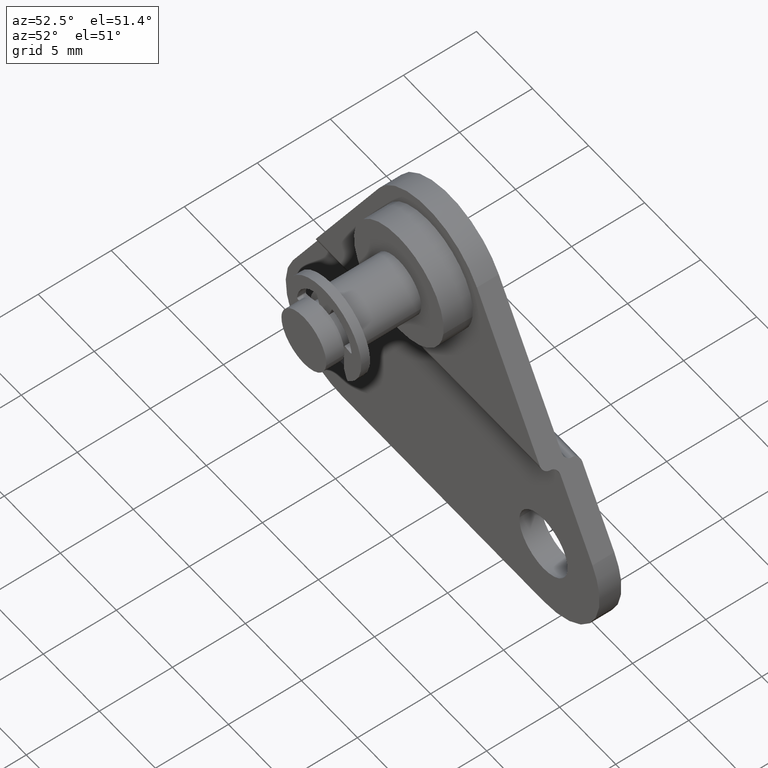
[diagram: clean part render]
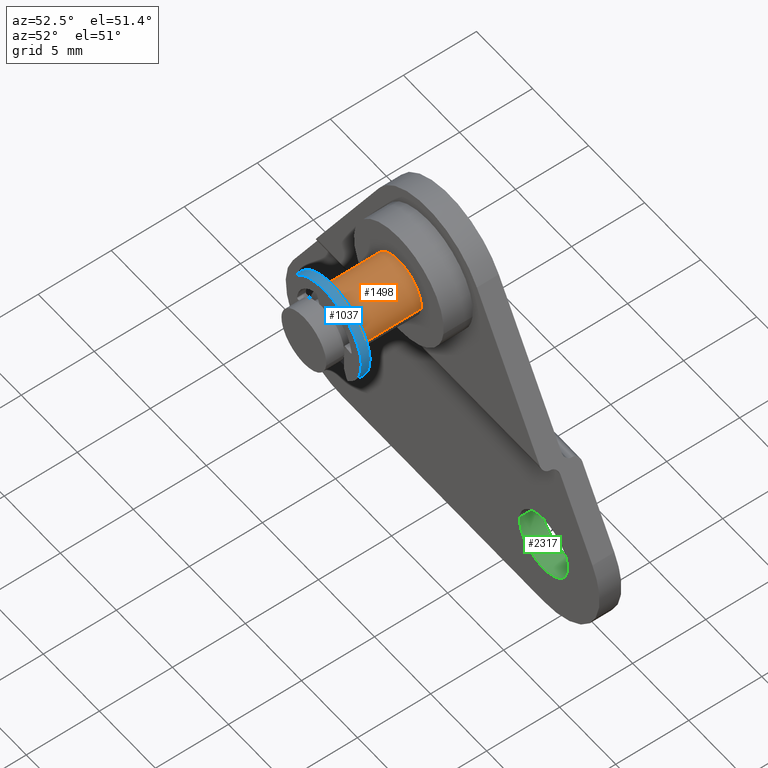
[diagram: same view with three faces highlighted in distinct colors, each labeled with its STEP entity id]
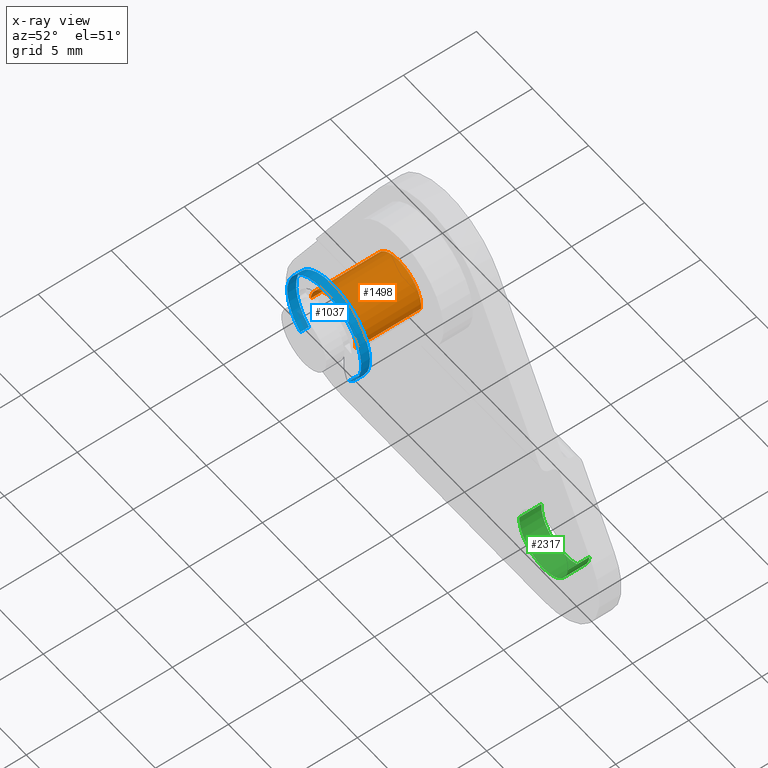
[diagram: x-ray of the same camera — body ghosted, the three highlighted faces saturated]
A machine part, auxiliary view with three faces highlighted in distinct colors.
The next image is the same camera in x-ray (body ghosted, the three faces saturated) — at least one of them is partly hidden behind the body in this view.
Their STEP definitions:

[orange] entity #1498 — the highlighted face is a freeform B-spline surface patch.
#1396=CARTESIAN_POINT('',(1.986019052727332,-4.387500000000000,15.763931530686484));
#1397=CARTESIAN_POINT('',(1.992775230897211,-4.387499999999998,15.820770542724050));
#1398=CARTESIAN_POINT('',(1.996269596843733,-4.387499999999999,15.877902920930291));
#1399=CARTESIAN_POINT('',(2.118366675913447,-4.387499999999999,17.874172517774024));
#1400=CARTESIAN_POINT('',(0.122097079069714,-4.387499999999999,17.996269596843732));
#1401=CARTESIAN_POINT('',(-1.874172517774020,-4.387499999999999,18.118366675913453));
#1402=CARTESIAN_POINT('',(-1.996269596843733,-4.387499999999999,16.122097079069711));
#1403=CARTESIAN_POINT('',(1.986019052727332,-9.115312500000002,15.763931530686484));
#1404=CARTESIAN_POINT('',(1.992775230897211,-9.115312500000002,15.820770542724050));
#1405=CARTESIAN_POINT('',(1.996269596843733,-9.115312500000002,15.877902920930291));
#1406=CARTESIAN_POINT('',(2.118366675913447,-9.115312500000002,17.874172517774024));
#1407=CARTESIAN_POINT('',(0.122097079069714,-9.115312500000002,17.996269596843732));
#1408=CARTESIAN_POINT('',(-1.874172517774020,-9.115312500000002,18.118366675913453));
#1409=CARTESIAN_POINT('',(-1.996269596843733,-9.115312500000002,16.122097079069711));
#1417=(BOUNDED_SURFACE()B_SPLINE_SURFACE(2,1,((#1396,#1403),(#1397,#1404),(#1398,#1405),(#1399,#1406),(#1400,#1407),(#1401,#1408),(#1402,#1409)),.UNSPECIFIED.,.F.,.F.,.U.)B_SPLINE_SURFACE_WITH_KNOTS((3,2,2,3),(2,2),(0.0,0.132548339959391,3.446256838944152,6.759965337928914),(0.0,4.727812500000003),.UNSPECIFIED.)GEOMETRIC_REPRESENTATION_ITEM()RATIONAL_B_SPLINE_SURFACE(((0.977505800795127,0.977505800795127),(0.988284271247462,0.988284271247462),(1.0,1.0),(0.707106781186548,0.707106781186548),(1.0,1.0),(0.707106781186548,0.707106781186548),(1.0,1.0)))REPRESENTATION_ITEM('')SURFACE());
#1418=CARTESIAN_POINT('',(1.986019052724167,-4.500000000000000,15.763931530659850));
#1419=VERTEX_POINT('',#1418);
#1420=CARTESIAN_POINT('',(0.0,-4.500000000000000,18.0));
#1421=VERTEX_POINT('',#1420);
#1422=CARTESIAN_POINT('',(1.986019052724167,-4.500000000000000,15.763931530659852));
#1423=CARTESIAN_POINT('',(2.000000000000000,-4.500000000000000,15.881551760669263));
#1424=CARTESIAN_POINT('',(2.0,-4.500000000000000,16.0));
#1425=CARTESIAN_POINT('',(2.000000000000000,-4.500000000000000,18.000000000000007));
#1426=CARTESIAN_POINT('',(0.0,-4.500000000000000,18.0));
#1434=(BOUNDED_CURVE()B_SPLINE_CURVE(2,(#1422,#1423,#1424,#1425,#1426),.UNSPECIFIED.,.F.,.U.)B_SPLINE_CURVE_WITH_KNOTS((3,2,3),(0.229562473511112,0.250000000000000,0.500000000000000),.UNSPECIFIED.)CURVE()GEOMETRIC_REPRESENTATION_ITEM()RATIONAL_B_SPLINE_CURVE((0.956026754179002,0.976055948328337,1.0,0.707106781186548,1.0))REPRESENTATION_ITEM(''));
#1435=EDGE_CURVE('',#1419,#1421,#1434,.T.);
#1436=ORIENTED_EDGE('',*,*,#1435,.T.);
#1437=CARTESIAN_POINT('',(-1.996269751361373,-4.500000000000024,16.122094552676181));
#1438=VERTEX_POINT('',#1437);
#1439=CARTESIAN_POINT('',(0.0,-4.500000000000000,18.0));
#1440=CARTESIAN_POINT('',(-1.881414519296867,-4.499999999999999,17.999999999999996));
#1441=CARTESIAN_POINT('',(-1.996269751361373,-4.500000000000024,16.122094552676181));
#1449=(BOUNDED_CURVE()B_SPLINE_CURVE(2,(#1439,#1440,#1441),.UNSPECIFIED.,.F.,.U.)B_SPLINE_CURVE_WITH_KNOTS((3,3),(0.500000000000000,0.739333180609851),.UNSPECIFIED.)CURVE()GEOMETRIC_REPRESENTATION_ITEM()RATIONAL_B_SPLINE_CURVE((1.0,0.719603737449278,0.976072509677589))REPRESENTATION_ITEM(''));
#1450=EDGE_CURVE('',#1421,#1438,#1449,.T.);
#1451=ORIENTED_EDGE('',*,*,#1450,.T.);
#1452=CARTESIAN_POINT('',(-1.996269749504410,-9.0,16.122094583038500));
#1453=VERTEX_POINT('',#1452);
#1454=CARTESIAN_POINT('',(-1.996269751361373,-4.500000000000024,16.122094552676181));
#1455=CARTESIAN_POINT('',(-1.996269749504410,-9.0,16.122094583038500));
#1456=QUASI_UNIFORM_CURVE('',1,(#1454,#1455),.UNSPECIFIED.,.F.,.U.);
#1457=EDGE_CURVE('',#1438,#1453,#1456,.T.);
#1458=ORIENTED_EDGE('',*,*,#1457,.T.);
#1459=CARTESIAN_POINT('',(0.0,-9.0,18.0));
#1460=VERTEX_POINT('',#1459);
#1461=CARTESIAN_POINT('',(0.0,-9.0,18.0));
#1462=CARTESIAN_POINT('',(-1.881414490627970,-9.000000000000002,18.000000000000007));
#1463=CARTESIAN_POINT('',(-1.996269749504410,-9.0,16.122094583038503));
#1471=(BOUNDED_CURVE()B_SPLINE_CURVE(2,(#1461,#1462,#1463),.UNSPECIFIED.,.F.,.U.)B_SPLINE_CURVE_WITH_KNOTS((3,3),(0.500000000000000,0.739333177985494),.UNSPECIFIED.)CURVE()GEOMETRIC_REPRESENTATION_ITEM()RATIONAL_B_SPLINE_CURVE((1.0,0.719603740523903,0.976072504053083))REPRESENTATION_ITEM(''));
#1472=EDGE_CURVE('',#1460,#1453,#1471,.T.);
#1473=ORIENTED_EDGE('',*,*,#1472,.F.);
#1474=CARTESIAN_POINT('',(1.986019052724167,-9.0,15.763931530659850));
#1475=VERTEX_POINT('',#1474);
#1476=CARTESIAN_POINT('',(1.986019052724168,-9.0,15.763931530659848));
#1477=CARTESIAN_POINT('',(2.000000000000000,-9.0,15.881551760669270));
#1478=CARTESIAN_POINT('',(2.0,-9.0,16.0));
#1479=CARTESIAN_POINT('',(2.000000000000000,-9.000000000000002,18.000000000000007));
#1480=CARTESIAN_POINT('',(0.0,-9.0,18.0));
#1488=(BOUNDED_CURVE()B_SPLINE_CURVE(2,(#1476,#1477,#1478,#1479,#1480),.UNSPECIFIED.,.F.,.U.)B_SPLINE_CURVE_WITH_KNOTS((3,2,3),(0.229562473511112,0.250000000000000,0.500000000000000),.UNSPECIFIED.)CURVE()GEOMETRIC_REPRESENTATION_ITEM()RATIONAL_B_SPLINE_CURVE((0.956026754179002,0.976055948328337,1.0,0.707106781186548,1.0))REPRESENTATION_ITEM(''));
#1489=EDGE_CURVE('',#1475,#1460,#1488,.T.);
#1490=ORIENTED_EDGE('',*,*,#1489,.F.);
#1491=CARTESIAN_POINT('',(1.986019052724167,-4.500000000000000,15.763931530659850));
#1492=CARTESIAN_POINT('',(1.986019052724167,-9.0,15.763931530659850));
#1493=QUASI_UNIFORM_CURVE('',1,(#1491,#1492),.UNSPECIFIED.,.F.,.U.);
#1494=EDGE_CURVE('',#1419,#1475,#1493,.T.);
#1495=ORIENTED_EDGE('',*,*,#1494,.F.);
#1496=EDGE_LOOP('',(#1436,#1451,#1458,#1473,#1490,#1495));
#1497=FACE_OUTER_BOUND('',#1496,.T.);
#1498=ADVANCED_FACE('',(#1497),#1417,.T.);

[blue] entity #1037 — the highlighted face is a freeform B-spline surface patch.
#628=CARTESIAN_POINT('',(-2.150005846573465,-9.0,13.496507533524420));
#629=VERTEX_POINT('',#628);
#645=CARTESIAN_POINT('',(2.150003786631555,-9.0,13.496504953358860));
#646=VERTEX_POINT('',#645);
#647=CARTESIAN_POINT('',(2.150003786631555,-9.0,13.496504953358860));
#648=CARTESIAN_POINT('',(3.892310612982329,-9.0,14.992800426240894));
#649=CARTESIAN_POINT('',(3.094473714975639,-9.0,17.146399623745960));
#650=CARTESIAN_POINT('',(2.296636816968949,-9.0,19.299998821251020));
#651=CARTESIAN_POINT('',(0.000001621881555,-9.0,19.299999949999599));
#652=CARTESIAN_POINT('',(-2.296633573205840,-9.0,19.300001078748178));
#653=CARTESIAN_POINT('',(-3.094472588110852,-9.0,17.146402665484750));
#654=CARTESIAN_POINT('',(-3.892311603015864,-9.0,14.992804252221307));
#655=CARTESIAN_POINT('',(-2.150005846573460,-9.0,13.496507533524429));
#663=(BOUNDED_CURVE()B_SPLINE_CURVE(2,(#647,#648,#649,#650,#651,#652,#653,#654,#655),.UNSPECIFIED.,.F.,.U.)B_SPLINE_CURVE_WITH_KNOTS((3,2,2,2,3),(0.0,0.250000000000000,0.500000000000000,0.750000000000000,1.0),.UNSPECIFIED.)CURVE()GEOMETRIC_REPRESENTATION_ITEM()RATIONAL_B_SPLINE_CURVE((1.0,0.820790561443864,1.0,0.820790561443864,1.0,0.820790561443864,1.0,0.820790561443864,1.0))REPRESENTATION_ITEM(''));
#664=EDGE_CURVE('',#646,#629,#663,.T.);
#778=CARTESIAN_POINT('',(2.150003786631555,-9.600000000000000,13.496504953358860));
#779=VERTEX_POINT('',#778);
#795=CARTESIAN_POINT('',(-2.150005846573465,-9.600000000000000,13.496507533524420));
#796=VERTEX_POINT('',#795);
#797=CARTESIAN_POINT('',(2.150003786631555,-9.600000000000000,13.496504953358860));
#798=CARTESIAN_POINT('',(3.892310612982329,-9.600000000000000,14.992800426240894));
#799=CARTESIAN_POINT('',(3.094473714975639,-9.600000000000000,17.146399623745960));
#800=CARTESIAN_POINT('',(2.296636816968949,-9.600000000000000,19.299998821251020));
#801=CARTESIAN_POINT('',(0.000001621881555,-9.600000000000000,19.299999949999599));
#802=CARTESIAN_POINT('',(-2.296633573205840,-9.600000000000000,19.300001078748178));
#803=CARTESIAN_POINT('',(-3.094472588110852,-9.600000000000000,17.146402665484750));
#804=CARTESIAN_POINT('',(-3.892311603015864,-9.600000000000000,14.992804252221307));
#805=CARTESIAN_POINT('',(-2.150005846573460,-9.600000000000000,13.496507533524429));
#813=(BOUNDED_CURVE()B_SPLINE_CURVE(2,(#797,#798,#799,#800,#801,#802,#803,#804,#805),.UNSPECIFIED.,.F.,.U.)B_SPLINE_CURVE_WITH_KNOTS((3,2,2,2,3),(0.0,0.250000000000000,0.500000000000000,0.750000000000000,1.0),.UNSPECIFIED.)CURVE()GEOMETRIC_REPRESENTATION_ITEM()RATIONAL_B_SPLINE_CURVE((1.0,0.820790561443864,1.0,0.820790561443864,1.0,0.820790561443864,1.0,0.820790561443864,1.0))REPRESENTATION_ITEM(''));
#814=EDGE_CURVE('',#779,#796,#813,.T.);
#997=CARTESIAN_POINT('',(-2.150005846573465,-9.600000000000000,13.496507533524420));
#998=CARTESIAN_POINT('',(-2.150005846573465,-9.0,13.496507533524420));
#999=QUASI_UNIFORM_CURVE('',1,(#997,#998),.UNSPECIFIED.,.F.,.U.);
#1000=EDGE_CURVE('',#796,#629,#999,.T.);
#1005=CARTESIAN_POINT('',(2.083732785074836,-9.615000000000002,13.441082777735030));
#1006=CARTESIAN_POINT('',(2.083732785074836,-8.984624999999998,13.441082777735030));
#1007=CARTESIAN_POINT('',(4.843889195230157,-9.615000000000002,15.688685143975054));
#1008=CARTESIAN_POINT('',(4.843889195230157,-8.984624999999998,15.688685143975054));
#1009=CARTESIAN_POINT('',(2.394157698992865,-9.615000000000002,18.271124959651750));
#1010=CARTESIAN_POINT('',(2.394157698992865,-8.984624999999998,18.271124959651750));
#1011=CARTESIAN_POINT('',(-0.055573797244425,-9.615000000000002,20.853564775328451));
#1012=CARTESIAN_POINT('',(-0.055573797244425,-8.984624999999998,20.853564775328451));
#1013=CARTESIAN_POINT('',(-2.445532403866247,-9.615000000000002,18.215710028780880));
#1014=CARTESIAN_POINT('',(-2.445532403866247,-8.984624999999998,18.215710028780880));
#1015=CARTESIAN_POINT('',(-4.835491010488069,-9.615000000000002,15.577855282233303));
#1016=CARTESIAN_POINT('',(-4.835491010488069,-8.984624999999998,15.577855282233303));
#1017=CARTESIAN_POINT('',(-2.024594452664912,-9.615000000000002,13.394042024084341));
#1018=CARTESIAN_POINT('',(-2.024594452664912,-8.984624999999998,13.394042024084341));
#1026=(BOUNDED_SURFACE()B_SPLINE_SURFACE(1,2,((#1005,#1007,#1009,#1011,#1013,#1015,#1017),(#1006,#1008,#1010,#1012,#1014,#1016,#1018)),.UNSPECIFIED.,.F.,.F.,.U.)B_SPLINE_SURFACE_WITH_KNOTS((2,2),(3,2,2,3),(0.0,1.0),(0.0,5.762366072069613,11.524732144139231,17.287098216208840),.UNSPECIFIED.)GEOMETRIC_REPRESENTATION_ITEM()RATIONAL_B_SPLINE_SURFACE(((1.0,0.679868055986157,1.0,0.679868055986157,1.0,0.679868055986157,1.0),(1.0,0.679868055986157,1.0,0.679868055986157,1.0,0.679868055986157,1.0)))REPRESENTATION_ITEM('')SURFACE());
#1027=ORIENTED_EDGE('',*,*,#664,.T.);
#1028=ORIENTED_EDGE('',*,*,#1000,.F.);
#1029=ORIENTED_EDGE('',*,*,#814,.F.);
#1030=CARTESIAN_POINT('',(2.150003786631555,-9.600000000000000,13.496504953358860));
#1031=CARTESIAN_POINT('',(2.150003786631555,-9.0,13.496504953358860));
#1032=QUASI_UNIFORM_CURVE('',1,(#1030,#1031),.UNSPECIFIED.,.F.,.U.);
#1033=EDGE_CURVE('',#779,#646,#1032,.T.);
#1034=ORIENTED_EDGE('',*,*,#1033,.T.);
#1035=EDGE_LOOP('',(#1027,#1028,#1029,#1034));
#1036=FACE_OUTER_BOUND('',#1035,.T.);
#1037=ADVANCED_FACE('',(#1036),#1026,.T.);

[green] entity #2317 — the highlighted face is a freeform B-spline surface patch.
#2156=CARTESIAN_POINT('',(6.856623632786118,4.510281E-017,0.168687063712577));
#2157=VERTEX_POINT('',#2156);
#2171=CARTESIAN_POINT('',(11.143368367213879,4.510281E-017,-0.168687063712577));
#2172=VERTEX_POINT('',#2171);
#2188=CARTESIAN_POINT('',(11.143368367213879,-1.499999999999946,-0.168687063712577));
#2189=VERTEX_POINT('',#2188);
#2190=CARTESIAN_POINT('',(11.143368367213879,-1.499999999999946,-0.168687063712577));
#2191=CARTESIAN_POINT('',(11.143368367213879,4.510281E-017,-0.168687063712577));
#2192=QUASI_UNIFORM_CURVE('',1,(#2190,#2191),.UNSPECIFIED.,.F.,.U.);
#2193=EDGE_CURVE('',#2189,#2172,#2192,.T.);
#2212=CARTESIAN_POINT('',(6.856623632786118,-1.499999999999946,0.168687063712577));
#2213=VERTEX_POINT('',#2212);
#2227=CARTESIAN_POINT('',(6.856623632786118,-1.499999999999946,0.168687063712577));
#2228=CARTESIAN_POINT('',(6.856623632786118,4.510281E-017,0.168687063712577));
#2229=QUASI_UNIFORM_CURVE('',1,(#2227,#2228),.UNSPECIFIED.,.F.,.U.);
#2230=EDGE_CURVE('',#2213,#2157,#2229,.T.);
#2235=CARTESIAN_POINT('',(11.143368367217960,-1.537499999999945,-0.168687063660777));
#2236=CARTESIAN_POINT('',(10.974681303557178,-1.537499999999945,-2.312059430878735));
#2237=CARTESIAN_POINT('',(8.831308936339221,-1.537499999999945,-2.143372367217958));
#2238=CARTESIAN_POINT('',(6.687936569121264,-1.537499999999945,-1.974685303557180));
#2239=CARTESIAN_POINT('',(6.856623632782042,-1.537499999999945,0.168687063660777));
#2240=CARTESIAN_POINT('',(11.143368367217960,0.038437499999999,-0.168687063660777));
#2241=CARTESIAN_POINT('',(10.974681303557178,0.038437499999999,-2.312059430878735));
#2242=CARTESIAN_POINT('',(8.831308936339221,0.038437499999999,-2.143372367217958));
#2243=CARTESIAN_POINT('',(6.687936569121264,0.038437499999999,-1.974685303557180));
#2244=CARTESIAN_POINT('',(6.856623632782042,0.038437499999999,0.168687063660777));
#2252=(BOUNDED_SURFACE()B_SPLINE_SURFACE(2,1,((#2235,#2240),(#2236,#2241),(#2237,#2242),(#2238,#2243),(#2239,#2244)),.UNSPECIFIED.,.F.,.F.,.U.)B_SPLINE_SURFACE_WITH_KNOTS((3,2,3),(2,2),(0.0,3.562236802094043,7.124473604188085),(0.0,1.0),.UNSPECIFIED.)GEOMETRIC_REPRESENTATION_ITEM()RATIONAL_B_SPLINE_SURFACE(((1.0,1.0),(0.707106781186548,0.707106781186548),(1.0,1.0),(0.707106781186548,0.707106781186548),(1.0,1.0)))REPRESENTATION_ITEM('')SURFACE());
#2253=CARTESIAN_POINT('',(8.999995999999999,0.0,-2.150000100000000));
#2254=VERTEX_POINT('',#2253);
#2255=CARTESIAN_POINT('',(6.856623632786118,4.510281E-017,0.168687063712577));
#2256=CARTESIAN_POINT('',(6.849995899999999,0.0,0.084473734047541));
#2257=CARTESIAN_POINT('',(6.849995899999999,0.0,0.0));
#2258=CARTESIAN_POINT('',(6.849995899999998,0.0,-2.150000100000001));
#2259=CARTESIAN_POINT('',(8.999995999999999,0.0,-2.150000100000000));
#2267=(BOUNDED_CURVE()B_SPLINE_CURVE(2,(#2255,#2256,#2257,#2258,#2259),.UNSPECIFIED.,.F.,.U.)B_SPLINE_CURVE_WITH_KNOTS((3,2,3),(0.236331300624481,0.250000000000000,0.500000000000000),.UNSPECIFIED.)CURVE()GEOMETRIC_REPRESENTATION_ITEM()RATIONAL_B_SPLINE_CURVE((0.969723356154524,0.983986122571643,1.0,0.707106781186548,1.0))REPRESENTATION_ITEM(''));
#2268=EDGE_CURVE('',#2157,#2254,#2267,.T.);
#2269=ORIENTED_EDGE('',*,*,#2268,.F.);
#2270=ORIENTED_EDGE('',*,*,#2230,.F.);
#2271=CARTESIAN_POINT('',(8.999995999999999,-1.499999999999946,-2.150000100000000));
#2272=VERTEX_POINT('',#2271);
#2273=CARTESIAN_POINT('',(6.856623632786118,-1.499999999999946,0.168687063712577));
#2274=CARTESIAN_POINT('',(6.849995899999999,-1.499999999999946,0.084473734047541));
#2275=CARTESIAN_POINT('',(6.849995899999999,-1.499999999999946,0.0));
#2276=CARTESIAN_POINT('',(6.849995899999998,-1.499999999999946,-2.150000100000001));
#2277=CARTESIAN_POINT('',(8.999995999999999,-1.499999999999946,-2.150000100000000));
#2285=(BOUNDED_CURVE()B_SPLINE_CURVE(2,(#2273,#2274,#2275,#2276,#2277),.UNSPECIFIED.,.F.,.U.)B_SPLINE_CURVE_WITH_KNOTS((3,2,3),(0.236331300624481,0.250000000000000,0.500000000000000),.UNSPECIFIED.)CURVE()GEOMETRIC_REPRESENTATION_ITEM()RATIONAL_B_SPLINE_CURVE((0.969723356154524,0.983986122571643,1.0,0.707106781186548,1.0))REPRESENTATION_ITEM(''));
#2286=EDGE_CURVE('',#2213,#2272,#2285,.T.);
#2287=ORIENTED_EDGE('',*,*,#2286,.T.);
#2288=CARTESIAN_POINT('',(8.999995999999999,-1.499999999999946,-2.150000100000000));
#2289=CARTESIAN_POINT('',(10.987435649407841,-1.499999999999947,-2.150000100000001));
#2290=CARTESIAN_POINT('',(11.143368367213881,-1.499999999999947,-0.168687063712577));
#2298=(BOUNDED_CURVE()B_SPLINE_CURVE(2,(#2288,#2289,#2290),.UNSPECIFIED.,.F.,.U.)B_SPLINE_CURVE_WITH_KNOTS((3,3),(0.500000000000000,0.736331300624482),.UNSPECIFIED.)CURVE()GEOMETRIC_REPRESENTATION_ITEM()RATIONAL_B_SPLINE_CURVE((1.0,0.723120658614904,0.969723356154525))REPRESENTATION_ITEM(''));
#2299=EDGE_CURVE('',#2272,#2189,#2298,.T.);
#2300=ORIENTED_EDGE('',*,*,#2299,.T.);
#2301=ORIENTED_EDGE('',*,*,#2193,.T.);
#2302=CARTESIAN_POINT('',(8.999995999999999,0.0,-2.150000100000000));
#2303=CARTESIAN_POINT('',(10.987435649407841,0.0,-2.150000100000001));
#2304=CARTESIAN_POINT('',(11.143368367213881,4.510281E-017,-0.168687063712577));
#2312=(BOUNDED_CURVE()B_SPLINE_CURVE(2,(#2302,#2303,#2304),.UNSPECIFIED.,.F.,.U.)B_SPLINE_CURVE_WITH_KNOTS((3,3),(0.500000000000000,0.736331300624482),.UNSPECIFIED.)CURVE()GEOMETRIC_REPRESENTATION_ITEM()RATIONAL_B_SPLINE_CURVE((1.0,0.723120658614904,0.969723356154525))REPRESENTATION_ITEM(''));
#2313=EDGE_CURVE('',#2254,#2172,#2312,.T.);
#2314=ORIENTED_EDGE('',*,*,#2313,.F.);
#2315=EDGE_LOOP('',(#2269,#2270,#2287,#2300,#2301,#2314));
#2316=FACE_OUTER_BOUND('',#2315,.T.);
#2317=ADVANCED_FACE('',(#2316),#2252,.F.);